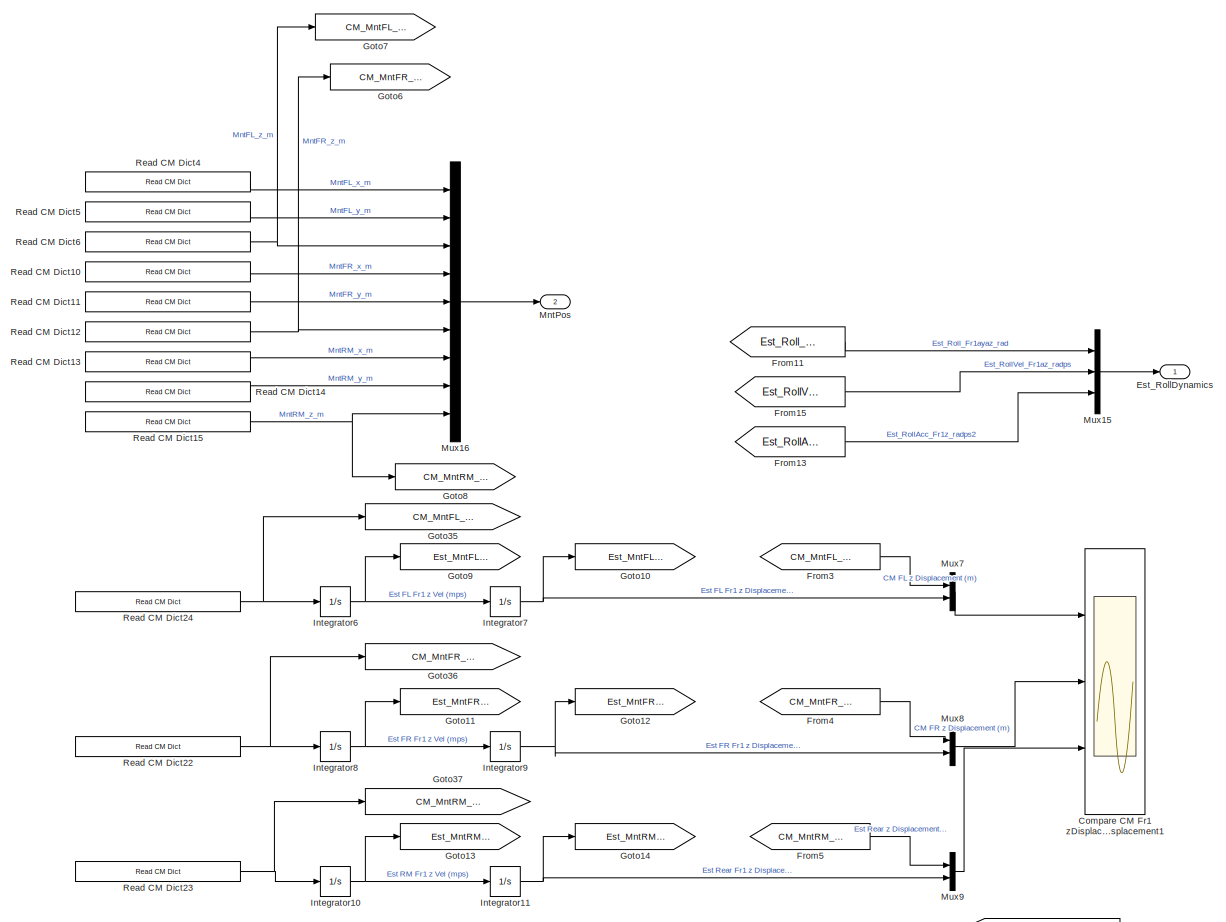
[diagram: root canvas - part 1/4, central region]
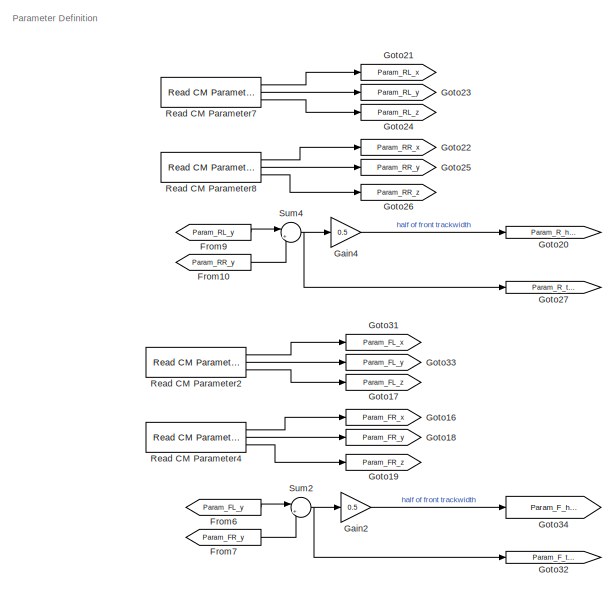
[diagram: root canvas - part 2/4, middle left region]
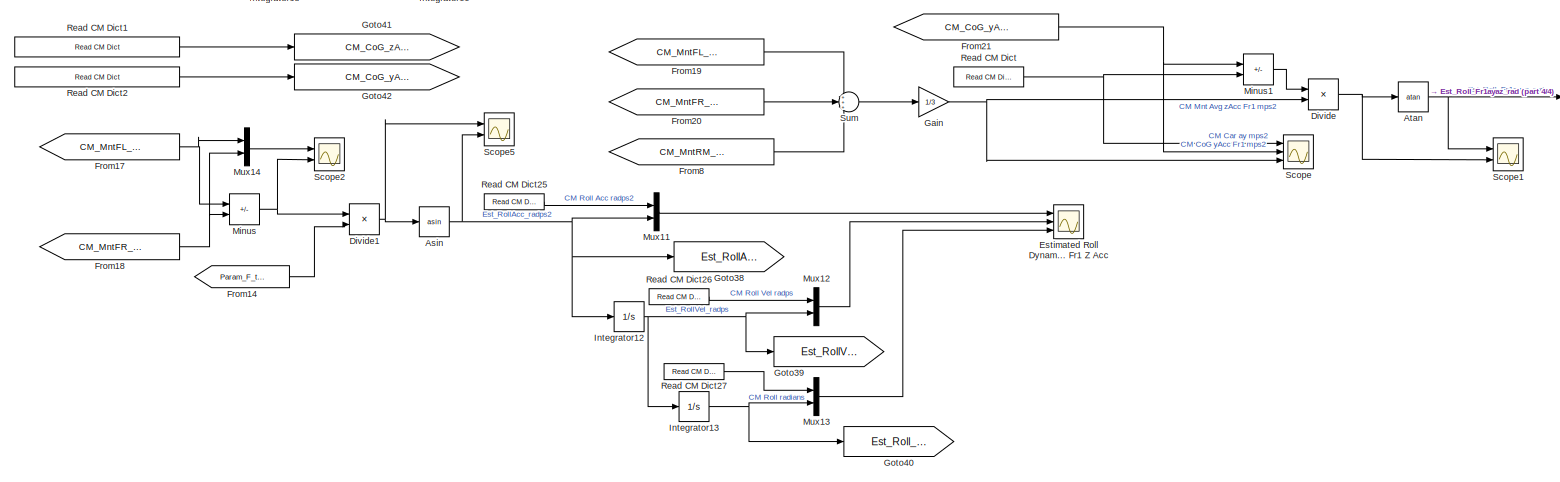
[diagram: root canvas - part 3/4, bottom center region]
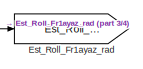
[diagram: root canvas - part 4/4, bottom right region]
MODEL slx_9fd66e955755
KIND model
CONFIG AbsTol = auto
CONFIG EnableMultiTasking = off
CONFIG FixedStep = 0.001
CONFIG MaxStep = auto
CONFIG MinStep = auto
CONFIG RelTol = 1e-3
CONFIG SampleTimeConstraint = Unconstrained
CONFIG SolverName = FixedStepAuto
CONFIG StartTime = 0.0
CONFIG StopTime = 10.0
BLOCK [Trigonometry] Asin
  Commented = through
  Operator = asin
  Ports = [1, 1]
BLOCK [Trigonometry] Atan
  Operator = atan
  Ports = [1, 1]
BLOCK [Scope] Compare CM Fr1 zDisplacement and Estimated Displacement1
  Floating = off
  NumInputPorts = 3
  Ports = [3]
  ScopeSpecificationString = Simulink.scopes.TimeScopeBlockCfg('CurrentConfiguration', extmgr.ConfigurationSet(extmgr.Configuration('Core','General UI',true),extmgr.Configuration('Core','Source UI',true),extmgr.Configuration('Sources','WiredSimulink',true,'DataLoggingVariableName','ScopeData3'),extmgr.Configuration('Visuals','Time Domain',true,'SerializedDisplays',{struct('MinYLimReal','-60.80248','MaxYLimReal','547.22229','Y...<+2938ch>
BLOCK [Product] Divide
  Inputs = */
  Ports = [2, 1]
BLOCK [Product] Divide1
  Inputs = */
  Ports = [2, 1]
BLOCK [Outport] Est_RollDynamics
BLOCK [Goto] Est_Roll_Fr1ayaz_rad
  GotoTag = Est_Roll_Fr1ayaz_rad
BLOCK [Scope] Estimated Roll Dynamics from Fr1 Z Acc
  Floating = off
  NumInputPorts = 3
  Ports = [3]
  ScopeSpecificationString = Simulink.scopes.TimeScopeBlockCfg('CurrentConfiguration', extmgr.ConfigurationSet(extmgr.Configuration('Core','General UI',true),extmgr.Configuration('Core','Source UI',true),extmgr.Configuration('Sources','WiredSimulink',true,'DataLoggingVariableName','ScopeData4'),extmgr.Configuration('Visuals','Time Domain',true,'SerializedDisplays',{struct('MinYLimReal','-1.37569','MaxYLimReal','1.66786','YLab...<+2994ch>
BLOCK [From] From10
  GotoTag = Param_RR_y
BLOCK [From] From11
  GotoTag = Est_Roll_Fr1ayaz_rad
BLOCK [From] From13
  GotoTag = Est_RollAcc_radps2
BLOCK [From] From14
  GotoTag = Param_F_track
BLOCK [From] From15
  GotoTag = Est_RollVel_radps
BLOCK [From] From17
  GotoTag = CM_MntFL_zAcc_1_mps2
BLOCK [From] From18
  GotoTag = CM_MntFR_zAcc_1_mps2
BLOCK [From] From19
  GotoTag = CM_MntFL_zAcc_1_mps2
BLOCK [From] From20
  GotoTag = CM_MntFR_zAcc_1_mps2
BLOCK [From] From21
  GotoTag = CM_CoG_yAcc_1_mps2
BLOCK [From] From3
  GotoTag = CM_MntFL_zDisp_0_m
BLOCK [From] From4
  GotoTag = CM_MntFR_zDisp_0_m
BLOCK [From] From5
  GotoTag = CM_MntRM_zDisp_0_m
BLOCK [From] From6
  GotoTag = Param_FL_y
BLOCK [From] From7
  GotoTag = Param_FR_y
BLOCK [From] From8
  GotoTag = CM_MntRM_zAcc_1_mps2
BLOCK [From] From9
  GotoTag = Param_RL_y
BLOCK [Gain] Gain
  Gain = 1/3
BLOCK [Gain] Gain2
  Gain = 0.5
BLOCK [Gain] Gain4
  Gain = 0.5
BLOCK [Goto] Goto10
  GotoTag = Est_MntFL_zDisp_1_m
BLOCK [Goto] Goto11
  GotoTag = Est_MntFR_zVel_1_mps
BLOCK [Goto] Goto12
  GotoTag = Est_MntFR_zDisp_1_m
BLOCK [Goto] Goto13
  GotoTag = Est_MntRM_zVel_1_mps
BLOCK [Goto] Goto14
  GotoTag = Est_MntRM_zDisp_1_m
BLOCK [Goto] Goto16
  GotoTag = Param_FR_x
BLOCK [Goto] Goto17
  GotoTag = Param_FL_z
BLOCK [Goto] Goto18
  GotoTag = Param_FR_y
BLOCK [Goto] Goto19
  GotoTag = Param_FR_z
BLOCK [Goto] Goto20
  GotoTag = Param_R_halftrack
BLOCK [Goto] Goto21
  GotoTag = Param_RL_x
BLOCK [Goto] Goto22
  GotoTag = Param_RR_x
BLOCK [Goto] Goto23
  GotoTag = Param_RL_y
BLOCK [Goto] Goto24
  GotoTag = Param_RL_z
BLOCK [Goto] Goto25
  GotoTag = Param_RR_y
BLOCK [Goto] Goto26
  GotoTag = Param_RR_z
BLOCK [Goto] Goto27
  GotoTag = Param_R_track
BLOCK [Goto] Goto31
  GotoTag = Param_FL_x
BLOCK [Goto] Goto32
  GotoTag = Param_F_track
BLOCK [Goto] Goto33
  GotoTag = Param_FL_y
BLOCK [Goto] Goto34
  GotoTag = Param_F_halftrack
BLOCK [Goto] Goto35
  GotoTag = CM_MntFL_zAcc_1_mps2
BLOCK [Goto] Goto36
  GotoTag = CM_MntFR_zAcc_1_mps2
BLOCK [Goto] Goto37
  GotoTag = CM_MntRM_zAcc_1_mps2
BLOCK [Goto] Goto38
  GotoTag = Est_RollAcc_radps2
BLOCK [Goto] Goto39
  GotoTag = Est_RollVel_radps
BLOCK [Goto] Goto40
  GotoTag = Est_Roll_rad
BLOCK [Goto] Goto41
  GotoTag = CM_CoG_zAcc_1_mps2
BLOCK [Goto] Goto42
  GotoTag = CM_CoG_yAcc_1_mps2
BLOCK [Goto] Goto6
  GotoTag = CM_MntFR_zDisp_0_m
BLOCK [Goto] Goto7
  GotoTag = CM_MntFL_zDisp_0_m
BLOCK [Goto] Goto8
  GotoTag = CM_MntRM_zDisp_0_m
BLOCK [Goto] Goto9
  GotoTag = Est_MntFL_zVel_1_mps
BLOCK [Integrator] Integrator10
  Ports = [1, 1]
BLOCK [Integrator] Integrator11
  Ports = [1, 1]
BLOCK [Integrator] Integrator12
  Ports = [1, 1]
BLOCK [Integrator] Integrator13
  Ports = [1, 1]
BLOCK [Integrator] Integrator6
  Ports = [1, 1]
BLOCK [Integrator] Integrator7
  Ports = [1, 1]
BLOCK [Integrator] Integrator8
  Ports = [1, 1]
BLOCK [Integrator] Integrator9
  Ports = [1, 1]
BLOCK [Sum] Minus
  IconShape = rectangular
  Inputs = +-
  Ports = [2, 1]
BLOCK [Sum] Minus1
  IconShape = rectangular
  Inputs = +-
  Ports = [2, 1]
BLOCK [Outport] MntPos
  Port = 2
BLOCK [Mux] Mux11
  DisplayOption = bar
  Inputs = 2
  Ports = [2, 1]
BLOCK [Mux] Mux12
  DisplayOption = bar
  Inputs = 2
  Ports = [2, 1]
BLOCK [Mux] Mux13
  DisplayOption = bar
  Inputs = 2
  Ports = [2, 1]
BLOCK [Mux] Mux14
  DisplayOption = bar
  Inputs = 2
  Ports = [2, 1]
BLOCK [Mux] Mux15
  DisplayOption = bar
  Inputs = 3
  Ports = [3, 1]
BLOCK [Mux] Mux16
  DisplayOption = bar
  Inputs = 9
  Ports = [9, 1]
BLOCK [Mux] Mux7
  DisplayOption = bar
  Inputs = 2
  Ports = [2, 1]
BLOCK [Mux] Mux8
  DisplayOption = bar
  Inputs = 2
  Ports = [2, 1]
BLOCK [Mux] Mux9
  DisplayOption = bar
  Inputs = 2
  Ports = [2, 1]
BLOCK [Reference] Read CM Dict  REF=CarMaker4SL/Read CM Dict
  Ports = [0, 1]
  SourceBlock = CarMaker4SL/Read CM Dict
  SourceProductName = CarMaker4SL
  SourceType = Read CarMaker Dictionary Variable(s)
BLOCK [Reference] Read CM Dict1  REF=CarMaker4SL/Read CM Dict
  Ports = [0, 1]
  SourceBlock = CarMaker4SL/Read CM Dict
  SourceProductName = CarMaker4SL
  SourceType = Read CarMaker Dictionary Variable(s)
BLOCK [Reference] Read CM Dict10  REF=CarMaker4SL/Read CM Dict
  Ports = [0, 1]
  SourceBlock = CarMaker4SL/Read CM Dict
  SourceProductName = CarMaker4SL
  SourceType = Read CarMaker Dictionary Variable(s)
BLOCK [Reference] Read CM Dict11  REF=CarMaker4SL/Read CM Dict
  Ports = [0, 1]
  SourceBlock = CarMaker4SL/Read CM Dict
  SourceProductName = CarMaker4SL
  SourceType = Read CarMaker Dictionary Variable(s)
BLOCK [Reference] Read CM Dict12  REF=CarMaker4SL/Read CM Dict
  Ports = [0, 1]
  SourceBlock = CarMaker4SL/Read CM Dict
  SourceProductName = CarMaker4SL
  SourceType = Read CarMaker Dictionary Variable(s)
BLOCK [Reference] Read CM Dict13  REF=CarMaker4SL/Read CM Dict
  Ports = [0, 1]
  SourceBlock = CarMaker4SL/Read CM Dict
  SourceProductName = CarMaker4SL
  SourceType = Read CarMaker Dictionary Variable(s)
BLOCK [Reference] Read CM Dict14  REF=CarMaker4SL/Read CM Dict
  Ports = [0, 1]
  SourceBlock = CarMaker4SL/Read CM Dict
  SourceProductName = CarMaker4SL
  SourceType = Read CarMaker Dictionary Variable(s)
BLOCK [Reference] Read CM Dict15  REF=CarMaker4SL/Read CM Dict
  Ports = [0, 1]
  SourceBlock = CarMaker4SL/Read CM Dict
  SourceProductName = CarMaker4SL
  SourceType = Read CarMaker Dictionary Variable(s)
BLOCK [Reference] Read CM Dict2  REF=CarMaker4SL/Read CM Dict
  Ports = [0, 1]
  SourceBlock = CarMaker4SL/Read CM Dict
  SourceProductName = CarMaker4SL
  SourceType = Read CarMaker Dictionary Variable(s)
BLOCK [Reference] Read CM Dict22  REF=CarMaker4SL/Read CM Dict
  Ports = [0, 1]
  SourceBlock = CarMaker4SL/Read CM Dict
  SourceProductName = CarMaker4SL
  SourceType = Read CarMaker Dictionary Variable(s)
BLOCK [Reference] Read CM Dict23  REF=CarMaker4SL/Read CM Dict
  Ports = [0, 1]
  SourceBlock = CarMaker4SL/Read CM Dict
  SourceProductName = CarMaker4SL
  SourceType = Read CarMaker Dictionary Variable(s)
BLOCK [Reference] Read CM Dict24  REF=CarMaker4SL/Read CM Dict
  Ports = [0, 1]
  SourceBlock = CarMaker4SL/Read CM Dict
  SourceProductName = CarMaker4SL
  SourceType = Read CarMaker Dictionary Variable(s)
BLOCK [Reference] Read CM Dict25  REF=CarMaker4SL/Read CM Dict
  Ports = [0, 1]
  SourceBlock = CarMaker4SL/Read CM Dict
  SourceProductName = CarMaker4SL
  SourceType = Read CarMaker Dictionary Variable(s)
BLOCK [Reference] Read CM Dict26  REF=CarMaker4SL/Read CM Dict
  Ports = [0, 1]
  SourceBlock = CarMaker4SL/Read CM Dict
  SourceProductName = CarMaker4SL
  SourceType = Read CarMaker Dictionary Variable(s)
BLOCK [Reference] Read CM Dict27  REF=CarMaker4SL/Read CM Dict
  Ports = [0, 1]
  SourceBlock = CarMaker4SL/Read CM Dict
  SourceProductName = CarMaker4SL
  SourceType = Read CarMaker Dictionary Variable(s)
BLOCK [Reference] Read CM Dict4  REF=CarMaker4SL/Read CM Dict
  Ports = [0, 1]
  SourceBlock = CarMaker4SL/Read CM Dict
  SourceProductName = CarMaker4SL
  SourceType = Read CarMaker Dictionary Variable(s)
BLOCK [Reference] Read CM Dict5  REF=CarMaker4SL/Read CM Dict
  Ports = [0, 1]
  SourceBlock = CarMaker4SL/Read CM Dict
  SourceProductName = CarMaker4SL
  SourceType = Read CarMaker Dictionary Variable(s)
BLOCK [Reference] Read CM Dict6  REF=CarMaker4SL/Read CM Dict
  Ports = [0, 1]
  SourceBlock = CarMaker4SL/Read CM Dict
  SourceProductName = CarMaker4SL
  SourceType = Read CarMaker Dictionary Variable(s)
BLOCK [Reference] Read CM Parameter2  REF=CarMaker4SL/Read CM Parameter
  Ports = [0, 3]
  SourceBlock = CarMaker4SL/Read CM Parameter
  SourceProductName = CarMaker4SL
  SourceType = Read CarMaker Infofile Parameter
BLOCK [Reference] Read CM Parameter4  REF=CarMaker4SL/Read CM Parameter
  Ports = [0, 3]
  SourceBlock = CarMaker4SL/Read CM Parameter
  SourceProductName = CarMaker4SL
  SourceType = Read CarMaker Infofile Parameter
BLOCK [Reference] Read CM Parameter7  REF=CarMaker4SL/Read CM Parameter
  Ports = [0, 3]
  SourceBlock = CarMaker4SL/Read CM Parameter
  SourceProductName = CarMaker4SL
  SourceType = Read CarMaker Infofile Parameter
BLOCK [Reference] Read CM Parameter8  REF=CarMaker4SL/Read CM Parameter
  Ports = [0, 3]
  SourceBlock = CarMaker4SL/Read CM Parameter
  SourceProductName = CarMaker4SL
  SourceType = Read CarMaker Infofile Parameter
BLOCK [Scope] Scope
  Floating = off
  NumInputPorts = 3
  Ports = [3]
  ScopeSpecificationString = Simulink.scopes.TimeScopeBlockCfg('CurrentConfiguration', extmgr.ConfigurationSet(extmgr.Configuration('Core','General UI',true),extmgr.Configuration('Core','Source UI',true),extmgr.Configuration('Sources','WiredSimulink',true,'DataLoggingVariableName','ScopeData1'),extmgr.Configuration('Visuals','Time Domain',true,'SerializedDisplays',{struct('MinYLimReal','-1.53823','MaxYLimReal','13.84404','YLa...<+1509ch>
BLOCK [Scope] Scope1
  Floating = off
  NumInputPorts = 2
  Ports = [2]
  ScopeSpecificationString = Simulink.scopes.TimeScopeBlockCfg('CurrentConfiguration', extmgr.ConfigurationSet(extmgr.Configuration('Core','General UI',true),extmgr.Configuration('Core','Source UI',true),extmgr.Configuration('Sources','WiredSimulink',true,'DataLoggingVariableName','ScopeData2'),extmgr.Configuration('Visuals','Time Domain',true,'SerializedDisplays',{struct('MinYLimReal','-0.09581','MaxYLimReal','0.10425','YLab...<+1434ch>
BLOCK [Scope] Scope2
  Floating = off
  NumInputPorts = 2
  Ports = [2]
  ScopeSpecificationString = Simulink.scopes.TimeScopeBlockCfg('CurrentConfiguration', extmgr.ConfigurationSet(extmgr.Configuration('Core','General UI',true),extmgr.Configuration('Core','Source UI',true),extmgr.Configuration('Sources','WiredSimulink',true,'DataLoggingVariableName','ScopeData8'),extmgr.Configuration('Visuals','Time Domain',true,'SerializedDisplays',{struct('MinYLimReal','6.3125','MaxYLimReal','14.9569','YLabel...<+2063ch>
BLOCK [Scope] Scope5
  Floating = off
  NumInputPorts = 2
  Ports = [2]
  ScopeSpecificationString = Simulink.scopes.TimeScopeBlockCfg('CurrentConfiguration', extmgr.ConfigurationSet(extmgr.Configuration('Core','General UI',true),extmgr.Configuration('Core','Source UI',true),extmgr.Configuration('Sources','WiredSimulink',true,'DataLoggingVariableName','ScopeData7'),extmgr.Configuration('Visuals','Time Domain',true,'SerializedDisplays',{struct('MinYLimReal','-1.37524','MaxYLimReal','1.6638','YLabe...<+1411ch>
BLOCK [Sum] Sum
  Inputs = +++
  Ports = [3, 1]
BLOCK [Sum] Sum2
  Inputs = |+-
  Ports = [2, 1]
BLOCK [Sum] Sum4
  Inputs = |+-
  Ports = [2, 1]
ANNOTATION (root): Parameter Definition
NET Asin:1 -> Goto38:1, Integrator12:1, Mux11:2, Scope5:2
NET Atan:1 -> Est_Roll_Fr1ayaz_rad:1, Scope1:1
NET Divide1:1 -> Asin:1, Scope5:1
NET Divide:1 -> Atan:1, Scope1:2
LINE From10:1 -> Sum4:2
LINE From11:1 -> Mux15:1
LINE From13:1 -> Mux15:3
LINE From14:1 -> Divide1:2
LINE From15:1 -> Mux15:2
NET From17:1 -> Minus:1, Mux14:1
NET From18:1 -> Minus:2, Mux14:2
LINE From19:1 -> Sum:1
LINE From20:1 -> Sum:2
NET From21:1 -> Minus1:1, Scope:2
LINE From3:1 -> Mux7:1
LINE From4:1 -> Mux8:1
LINE From5:1 -> Mux9:1
LINE From6:1 -> Sum2:1
LINE From7:1 -> Sum2:2
LINE From8:1 -> Sum:3
LINE From9:1 -> Sum4:1
LINE Gain2:1 -> Goto34:1
LINE Gain4:1 -> Goto20:1
NET Gain:1 -> Divide:2, Scope:3
NET Integrator10:1 -> Goto13:1, Integrator11:1
NET Integrator11:1 -> Goto14:1, Mux9:2
NET Integrator12:1 -> Goto39:1, Integrator13:1, Mux12:2
NET Integrator13:1 -> Goto40:1, Mux13:2
NET Integrator6:1 -> Goto9:1, Integrator7:1
NET Integrator7:1 -> Goto10:1, Mux7:2
NET Integrator8:1 -> Goto11:1, Integrator9:1
NET Integrator9:1 -> Goto12:1, Mux8:2
LINE Minus1:1 -> Divide:1
NET Minus:1 -> Divide1:1, Scope2:2
LINE Mux11:1 -> Estimated Roll Dynamics from Fr1 Z Acc:1
LINE Mux12:1 -> Estimated Roll Dynamics from Fr1 Z Acc:2
LINE Mux13:1 -> Estimated Roll Dynamics from Fr1 Z Acc:3
LINE Mux14:1 -> Scope2:1
LINE Mux15:1 -> Est_RollDynamics:1
LINE Mux16:1 -> MntPos:1
LINE Mux7:1 -> Compare CM Fr1 zDisplacement and Estimated Displacement1:1
LINE Mux8:1 -> Compare CM Fr1 zDisplacement and Estimated Displacement1:2
LINE Mux9:1 -> Compare CM Fr1 zDisplacement and Estimated Displacement1:3
LINE Read CM Dict10:1 -> Mux16:4
LINE Read CM Dict11:1 -> Mux16:5
NET Read CM Dict12:1 -> Goto6:1, Mux16:6
LINE Read CM Dict13:1 -> Mux16:7
LINE Read CM Dict14:1 -> Mux16:8
NET Read CM Dict15:1 -> Goto8:1, Mux16:9
LINE Read CM Dict1:1 -> Goto41:1
NET Read CM Dict22:1 -> Goto36:1, Integrator8:1
NET Read CM Dict23:1 -> Goto37:1, Integrator10:1
NET Read CM Dict24:1 -> Goto35:1, Integrator6:1
LINE Read CM Dict25:1 -> Mux11:1
LINE Read CM Dict26:1 -> Mux12:1
LINE Read CM Dict27:1 -> Mux13:1
LINE Read CM Dict2:1 -> Goto42:1
LINE Read CM Dict4:1 -> Mux16:1
LINE Read CM Dict5:1 -> Mux16:2
NET Read CM Dict6:1 -> Goto7:1, Mux16:3
NET Read CM Dict:1 -> Minus1:2, Scope:1
LINE Read CM Parameter2:1 -> Goto31:1
LINE Read CM Parameter2:2 -> Goto33:1
LINE Read CM Parameter2:3 -> Goto17:1
LINE Read CM Parameter4:1 -> Goto16:1
LINE Read CM Parameter4:2 -> Goto18:1
LINE Read CM Parameter4:3 -> Goto19:1
LINE Read CM Parameter7:1 -> Goto21:1
LINE Read CM Parameter7:2 -> Goto23:1
LINE Read CM Parameter7:3 -> Goto24:1
LINE Read CM Parameter8:1 -> Goto22:1
LINE Read CM Parameter8:2 -> Goto25:1
LINE Read CM Parameter8:3 -> Goto26:1
NET Sum2:1 -> Gain2:1, Goto32:1
NET Sum4:1 -> Gain4:1, Goto27:1
LINE Sum:1 -> Gain:1
note: NET lines group one-source signal fan-out (src -> all destinations, sorted); 1:1 wires keep LINE
